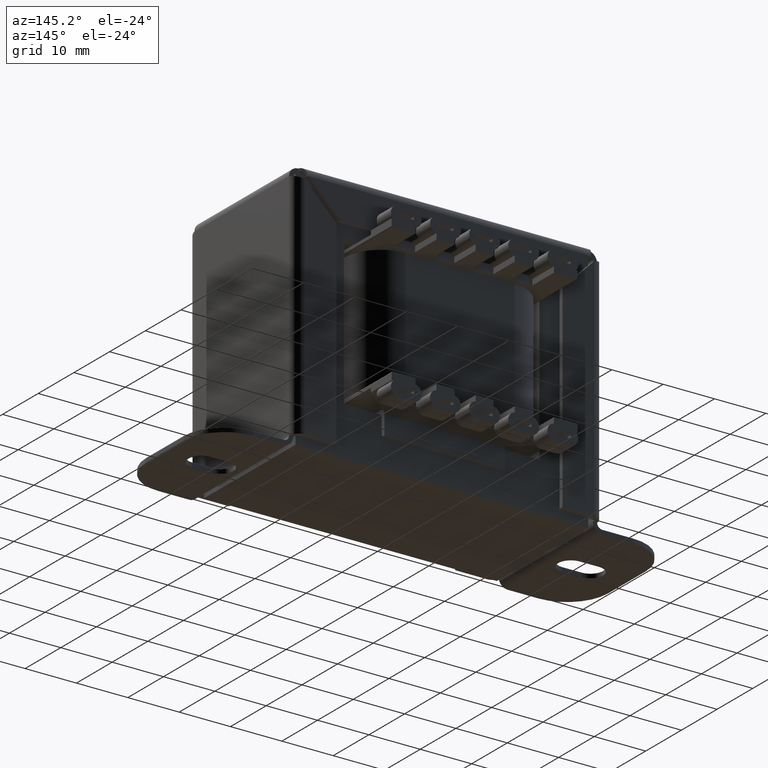
[diagram: clean part render]
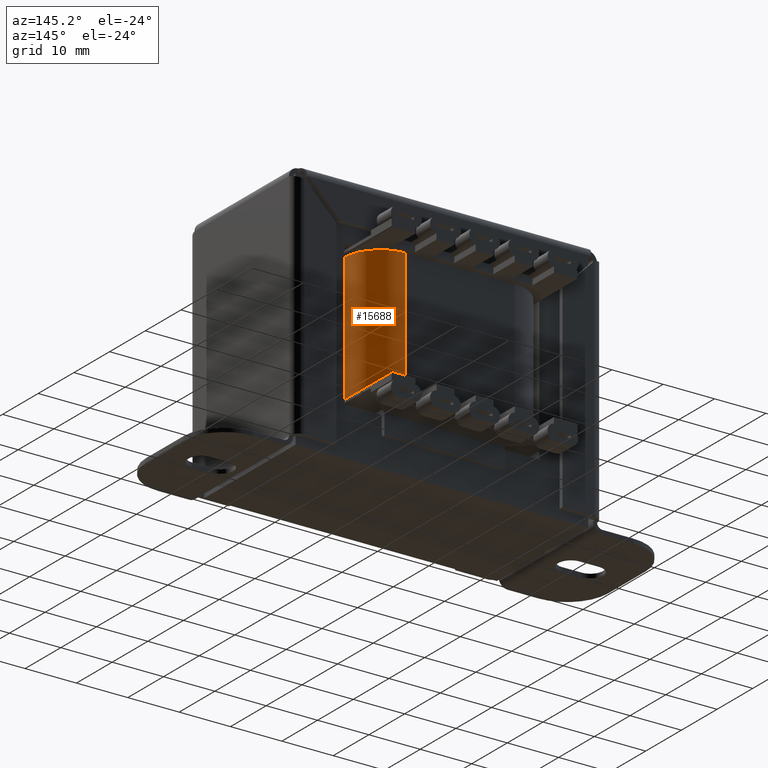
[diagram: same view with one face highlighted and labeled with its STEP entity id]
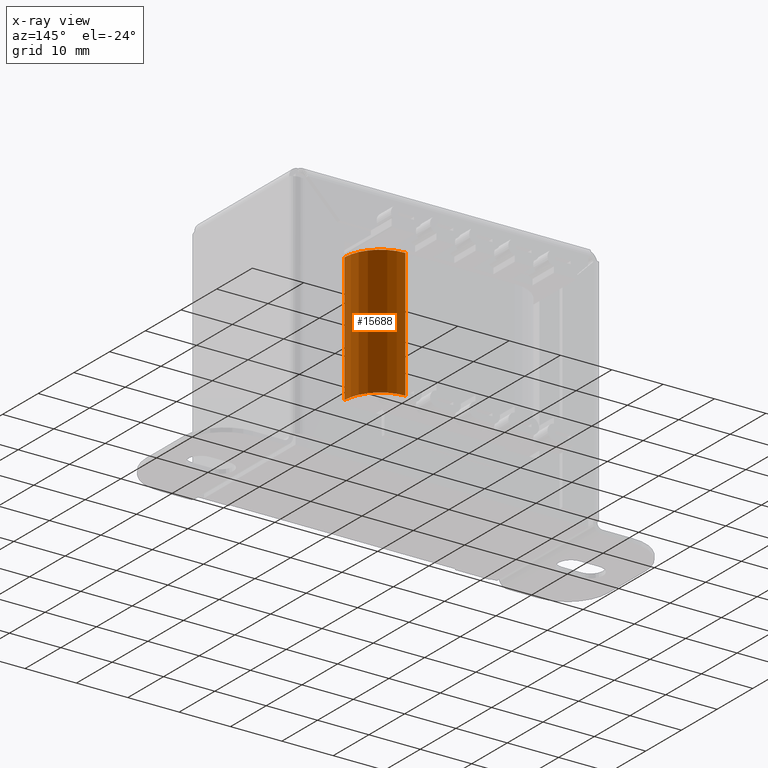
[diagram: x-ray of the same camera — body ghosted, the highlighted face saturated]
A machine part, auxiliary view. The second image highlights one B-rep face of the part: STEP entity #15688.
The next image is the same camera in x-ray: the body ghosted, the highlighted face saturated — about 0% of this face is hidden behind the body in this view.
In plain terms, the highlighted cylindrical surface (partial cylindrical patch) has radius 7 mm, axis along (-0, 0, -1).
Its self-contained STEP definition (entity closure, byte-faithful):
#70 = DIRECTION ( 'NONE',  ( -0.000000000000000000, 1.000000000000000000, -0.000000000000000000 ) ) ;
#166 = CARTESIAN_POINT ( 'NONE',  ( 11.00000000000001066, 25.00000000000000000, 10.64999999999999680 ) ) ;
#290 = AXIS2_PLACEMENT_3D ( 'NONE', #166, #12694, #4271 ) ;
#785 = DIRECTION ( 'NONE',  ( 0.000000000000000000, -1.000000000000000000, 0.000000000000000000 ) ) ;
#1459 = CARTESIAN_POINT ( 'NONE',  ( 11.00000000000001066, 0.000000000000000000, 17.64999999999999503 ) ) ;
#2295 = DIRECTION ( 'NONE',  ( 0.000000000000000000, 0.000000000000000000, -1.000000000000000000 ) ) ;
#2527 = ORIENTED_EDGE ( 'NONE', *, *, #17524, .F. ) ;
#2779 = DIRECTION ( 'NONE',  ( 0.000000000000000000, 0.000000000000000000, -1.000000000000000000 ) ) ;
#2823 = VERTEX_POINT ( 'NONE', #13630 ) ;
#3354 = LINE ( 'NONE', #4807, #16527 ) ;
#4271 = DIRECTION ( 'NONE',  ( 0.000000000000000000, 0.000000000000000000, -1.000000000000000000 ) ) ;
#4807 = CARTESIAN_POINT ( 'NONE',  ( 18.00000000000001421, 25.00000000000000000, 10.64999999999999680 ) ) ;
#5562 = EDGE_CURVE ( 'NONE', #2823, #15686, #3354, .T. ) ;
#6256 = VERTEX_POINT ( 'NONE', #12716 ) ;
#7792 = DIRECTION ( 'NONE',  ( 0.000000000000000000, -1.000000000000000000, 0.000000000000000000 ) ) ;
#8012 = CIRCLE ( 'NONE', #17074, 7.000000000000000000 ) ;
#8384 = LINE ( 'NONE', #11323, #8447 ) ;
#8447 = VECTOR ( 'NONE', #70, 1000.000000000000000 ) ;
#8638 = ORIENTED_EDGE ( 'NONE', *, *, #13286, .F. ) ;
#9031 = CIRCLE ( 'NONE', #17788, 7.000000000000000000 ) ;
#9758 = VERTEX_POINT ( 'NONE', #1459 ) ;
#10936 = CARTESIAN_POINT ( 'NONE',  ( 11.00000000000001066, 25.00000000000000000, 10.64999999999999680 ) ) ;
#11205 = EDGE_LOOP ( 'NONE', ( #2527, #17315, #8638, #15951 ) ) ;
#11323 = CARTESIAN_POINT ( 'NONE',  ( 11.00000000000001066, 25.00000000000000000, 17.64999999999999503 ) ) ;
#12518 = CARTESIAN_POINT ( 'NONE',  ( 18.00000000000001421, 0.000000000000000000, 10.64999999999999680 ) ) ;
#12694 = DIRECTION ( 'NONE',  ( 0.000000000000000000, -1.000000000000000000, 0.000000000000000000 ) ) ;
#12716 = CARTESIAN_POINT ( 'NONE',  ( 11.00000000000001066, 25.00000000000000000, 17.64999999999999503 ) ) ;
#13286 = EDGE_CURVE ( 'NONE', #15686, #9758, #9031, .T. ) ;
#13460 = FACE_OUTER_BOUND ( 'NONE', #11205, .T. ) ;
#13630 = CARTESIAN_POINT ( 'NONE',  ( 18.00000000000001421, 25.00000000000000000, 10.64999999999999680 ) ) ;
#13770 = DIRECTION ( 'NONE',  ( -0.000000000000000000, 1.000000000000000000, -0.000000000000000000 ) ) ;
#14572 = CARTESIAN_POINT ( 'NONE',  ( 11.00000000000001066, 0.000000000000000000, 10.64999999999999680 ) ) ;
#15031 = EDGE_CURVE ( 'NONE', #9758, #6256, #8384, .T. ) ;
#15259 = CYLINDRICAL_SURFACE ( 'NONE', #290, 7.000000000000000000 ) ;
#15686 = VERTEX_POINT ( 'NONE', #12518 ) ;
#15688 = ADVANCED_FACE ( 'NONE', ( #13460 ), #15259, .T. ) ;
#15951 = ORIENTED_EDGE ( 'NONE', *, *, #5562, .F. ) ;
#16527 = VECTOR ( 'NONE', #785, 1000.000000000000000 ) ;
#17074 = AXIS2_PLACEMENT_3D ( 'NONE', #10936, #13770, #2779 ) ;
#17315 = ORIENTED_EDGE ( 'NONE', *, *, #15031, .F. ) ;
#17524 = EDGE_CURVE ( 'NONE', #6256, #2823, #8012, .T. ) ;
#17788 = AXIS2_PLACEMENT_3D ( 'NONE', #14572, #7792, #2295 ) ;